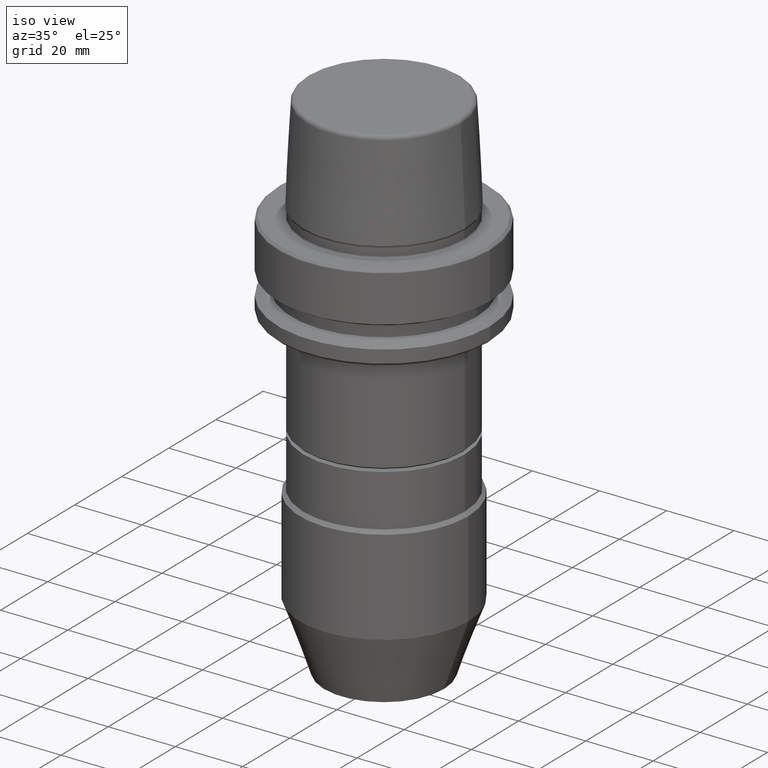
[diagram: clean part render]
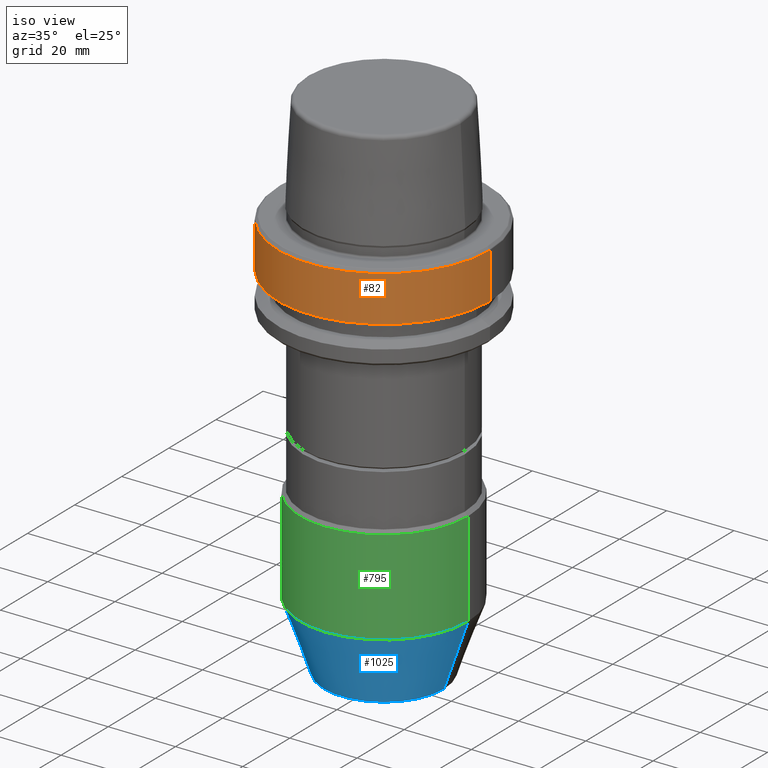
[diagram: same view with three faces highlighted in distinct colors, each labeled with its STEP entity id]
A machine part, iso view with three faces highlighted in distinct colors.
Their STEP definitions:

[orange] entity #82 — the highlighted cylindrical surface (partial cylindrical patch) has radius 31.5 mm, axis along (-0, -0, 1).
#82 = ADVANCED_FACE ( 'NONE', ( #346 ), #1364, .T. ) ;
#122 = CARTESIAN_POINT ( 'NONE',  ( 31.50000000000000700, 0.0000000000000000000, -0.9656854249492363700 ) ) ;
#203 = EDGE_CURVE ( 'NONE', #441, #1332, #228, .T. ) ;
#214 = CARTESIAN_POINT ( 'NONE',  ( 0.0000000000000000000, 0.0000000000000000000, 78.96908074195309300 ) ) ;
#228 = LINE ( 'NONE', #434, #931 ) ;
#296 = DIRECTION ( 'NONE',  ( 1.000000000000000000, 0.0000000000000000000, 0.0000000000000000000 ) ) ;
#299 = ORIENTED_EDGE ( 'NONE', *, *, #459, .F. ) ;
#307 = AXIS2_PLACEMENT_3D ( 'NONE', #619, #1429, #739 ) ;
#346 = FACE_OUTER_BOUND ( 'NONE', #1046, .T. ) ;
#373 = CARTESIAN_POINT ( 'NONE',  ( -31.50000000000000700, 3.857637417314163500E-015, -0.9656854249492363700 ) ) ;
#412 = VERTEX_POINT ( 'NONE', #1167 ) ;
#418 = EDGE_CURVE ( 'NONE', #412, #468, #1020, .T. ) ;
#427 = AXIS2_PLACEMENT_3D ( 'NONE', #214, #1365, #296 ) ;
#434 = CARTESIAN_POINT ( 'NONE',  ( -31.50000000000000000, 3.857637417314162700E-015, 78.96908074195309300 ) ) ;
#440 = CIRCLE ( 'NONE', #870, 31.50000000000000700 ) ;
#441 = VERTEX_POINT ( 'NONE', #694 ) ;
#459 = EDGE_CURVE ( 'NONE', #1332, #468, #440, .T. ) ;
#468 = VERTEX_POINT ( 'NONE', #122 ) ;
#555 = DIRECTION ( 'NONE',  ( -0.0000000000000000000, -0.0000000000000000000, 1.000000000000000000 ) ) ;
#575 = ORIENTED_EDGE ( 'NONE', *, *, #418, .T. ) ;
#619 = CARTESIAN_POINT ( 'NONE',  ( 0.0000000000000000000, 0.0000000000000000000, -14.62250092524070100 ) ) ;
#643 = DIRECTION ( 'NONE',  ( -0.0000000000000000000, -0.0000000000000000000, 1.000000000000000000 ) ) ;
#694 = CARTESIAN_POINT ( 'NONE',  ( -31.50000000000000000, 3.857637417314162700E-015, -14.62250092524070100 ) ) ;
#738 = ORIENTED_EDGE ( 'NONE', *, *, #203, .F. ) ;
#739 = DIRECTION ( 'NONE',  ( 1.000000000000000000, 0.0000000000000000000, 0.0000000000000000000 ) ) ;
#870 = AXIS2_PLACEMENT_3D ( 'NONE', #1451, #643, #1320 ) ;
#871 = VECTOR ( 'NONE', #983, 1000.000000000000000 ) ;
#883 = CIRCLE ( 'NONE', #307, 31.50000000000000000 ) ;
#931 = VECTOR ( 'NONE', #555, 1000.000000000000000 ) ;
#983 = DIRECTION ( 'NONE',  ( -0.0000000000000000000, -0.0000000000000000000, 1.000000000000000000 ) ) ;
#1020 = LINE ( 'NONE', #1454, #871 ) ;
#1046 = EDGE_LOOP ( 'NONE', ( #738, #1401, #575, #299 ) ) ;
#1167 = CARTESIAN_POINT ( 'NONE',  ( 31.50000000000000000, 0.0000000000000000000, -14.62250092524070100 ) ) ;
#1192 = EDGE_CURVE ( 'NONE', #441, #412, #883, .T. ) ;
#1320 = DIRECTION ( 'NONE',  ( 1.000000000000000000, 0.0000000000000000000, 0.0000000000000000000 ) ) ;
#1332 = VERTEX_POINT ( 'NONE', #373 ) ;
#1364 = CYLINDRICAL_SURFACE ( 'NONE', #427, 31.50000000000000000 ) ;
#1365 = DIRECTION ( 'NONE',  ( -0.0000000000000000000, -0.0000000000000000000, 1.000000000000000000 ) ) ;
#1401 = ORIENTED_EDGE ( 'NONE', *, *, #1192, .T. ) ;
#1429 = DIRECTION ( 'NONE',  ( -0.0000000000000000000, -0.0000000000000000000, 1.000000000000000000 ) ) ;
#1451 = CARTESIAN_POINT ( 'NONE',  ( 0.0000000000000000000, 0.0000000000000000000, -0.9656854249492363700 ) ) ;
#1454 = CARTESIAN_POINT ( 'NONE',  ( 31.50000000000000000, 0.0000000000000000000, 78.96908074195309300 ) ) ;

[blue] entity #1025 — the highlighted conical surface has half-angle 19.68 deg.
#1 = DIRECTION ( 'NONE',  ( -0.3367666026763854700, 4.124201420273638900E-017, 0.9415881558950312000 ) ) ;
#14 = DIRECTION ( 'NONE',  ( 1.000000000000000000, 0.0000000000000000000, 0.0000000000000000000 ) ) ;
#36 = AXIS2_PLACEMENT_3D ( 'NONE', #83, #1361, #328 ) ;
#59 = DIRECTION ( 'NONE',  ( 1.000000000000000000, 0.0000000000000000000, 0.0000000000000000000 ) ) ;
#83 = CARTESIAN_POINT ( 'NONE',  ( 0.0000000000000000000, 0.0000000000000000000, -122.5000000000000300 ) ) ;
#96 = EDGE_CURVE ( 'NONE', #1247, #424, #800, .T. ) ;
#102 = ORIENTED_EDGE ( 'NONE', *, *, #341, .F. ) ;
#110 = CARTESIAN_POINT ( 'NONE',  ( 25.00000000000000000, 0.0000000000000000000, -102.4389400111064200 ) ) ;
#124 = CARTESIAN_POINT ( 'NONE',  ( -17.82499999999998500, 2.622274958674269400E-015, -122.5000000000000300 ) ) ;
#127 = LINE ( 'NONE', #633, #1318 ) ;
#213 = VERTEX_POINT ( 'NONE', #110 ) ;
#243 = FACE_OUTER_BOUND ( 'NONE', #529, .T. ) ;
#310 = EDGE_CURVE ( 'NONE', #863, #213, #915, .T. ) ;
#328 = DIRECTION ( 'NONE',  ( 1.000000000000000000, 0.0000000000000000000, 0.0000000000000000000 ) ) ;
#341 = EDGE_CURVE ( 'NONE', #1247, #863, #649, .T. ) ;
#424 = VERTEX_POINT ( 'NONE', #475 ) ;
#475 = CARTESIAN_POINT ( 'NONE',  ( 17.82499999999998500, 0.0000000000000000000, -122.5000000000000300 ) ) ;
#477 = ORIENTED_EDGE ( 'NONE', *, *, #1424, .T. ) ;
#486 = AXIS2_PLACEMENT_3D ( 'NONE', #864, #1448, #59 ) ;
#529 = EDGE_LOOP ( 'NONE', ( #102, #1403, #477, #1171 ) ) ;
#612 = VECTOR ( 'NONE', #1, 1000.000000000000000 ) ;
#633 = CARTESIAN_POINT ( 'NONE',  ( 25.00000000000000000, 0.0000000000000000000, -102.4389400111064200 ) ) ;
#649 = LINE ( 'NONE', #813, #612 ) ;
#693 = CONICAL_SURFACE ( 'NONE', #486, 25.00000000000000000, 0.3434807967924810000 ) ;
#800 = CIRCLE ( 'NONE', #36, 17.82499999999998500 ) ;
#813 = CARTESIAN_POINT ( 'NONE',  ( -25.00000000000000000, 3.061616997868383000E-015, -102.4389400111064200 ) ) ;
#863 = VERTEX_POINT ( 'NONE', #1109 ) ;
#864 = CARTESIAN_POINT ( 'NONE',  ( 0.0000000000000000000, 0.0000000000000000000, -102.4389400111064200 ) ) ;
#915 = CIRCLE ( 'NONE', #979, 25.00000000000000000 ) ;
#948 = CARTESIAN_POINT ( 'NONE',  ( 0.0000000000000000000, 0.0000000000000000000, -102.4389400111064200 ) ) ;
#974 = DIRECTION ( 'NONE',  ( 0.3367666026763854700, 0.0000000000000000000, 0.9415881558950312000 ) ) ;
#979 = AXIS2_PLACEMENT_3D ( 'NONE', #948, #1165, #14 ) ;
#1025 = ADVANCED_FACE ( 'NONE', ( #243 ), #693, .T. ) ;
#1109 = CARTESIAN_POINT ( 'NONE',  ( -25.00000000000000000, 3.061616997868383000E-015, -102.4389400111064200 ) ) ;
#1165 = DIRECTION ( 'NONE',  ( -0.0000000000000000000, -0.0000000000000000000, 1.000000000000000000 ) ) ;
#1171 = ORIENTED_EDGE ( 'NONE', *, *, #310, .F. ) ;
#1247 = VERTEX_POINT ( 'NONE', #124 ) ;
#1318 = VECTOR ( 'NONE', #974, 1000.000000000000000 ) ;
#1361 = DIRECTION ( 'NONE',  ( -0.0000000000000000000, -0.0000000000000000000, 1.000000000000000000 ) ) ;
#1403 = ORIENTED_EDGE ( 'NONE', *, *, #96, .T. ) ;
#1424 = EDGE_CURVE ( 'NONE', #424, #213, #127, .T. ) ;
#1448 = DIRECTION ( 'NONE',  ( -0.0000000000000000000, -0.0000000000000000000, 1.000000000000000000 ) ) ;

[green] entity #795 — the highlighted cylindrical surface (partial cylindrical patch) has radius 25 mm, axis along (-0, -0, 1).
#14 = DIRECTION ( 'NONE',  ( 1.000000000000000000, 0.0000000000000000000, 0.0000000000000000000 ) ) ;
#63 = EDGE_CURVE ( 'NONE', #518, #1051, #1106, .T. ) ;
#73 = DIRECTION ( 'NONE',  ( -0.0000000000000000000, -0.0000000000000000000, 1.000000000000000000 ) ) ;
#90 = LINE ( 'NONE', #875, #1014 ) ;
#100 = CYLINDRICAL_SURFACE ( 'NONE', #775, 25.00000000000000000 ) ;
#110 = CARTESIAN_POINT ( 'NONE',  ( 25.00000000000000000, 0.0000000000000000000, -102.4389400111064200 ) ) ;
#149 = ORIENTED_EDGE ( 'NONE', *, *, #63, .F. ) ;
#213 = VERTEX_POINT ( 'NONE', #110 ) ;
#310 = EDGE_CURVE ( 'NONE', #863, #213, #915, .T. ) ;
#453 = ORIENTED_EDGE ( 'NONE', *, *, #310, .T. ) ;
#476 = FACE_OUTER_BOUND ( 'NONE', #656, .T. ) ;
#495 = VECTOR ( 'NONE', #1119, 1000.000000000000000 ) ;
#510 = ORIENTED_EDGE ( 'NONE', *, *, #1095, .T. ) ;
#518 = VERTEX_POINT ( 'NONE', #1269 ) ;
#520 = DIRECTION ( 'NONE',  ( 1.000000000000000000, 0.0000000000000000000, 0.0000000000000000000 ) ) ;
#551 = DIRECTION ( 'NONE',  ( -0.0000000000000000000, -0.0000000000000000000, 1.000000000000000000 ) ) ;
#645 = CARTESIAN_POINT ( 'NONE',  ( 0.0000000000000000000, 0.0000000000000000000, 31.31059451800105700 ) ) ;
#651 = EDGE_CURVE ( 'NONE', #863, #518, #1470, .T. ) ;
#656 = EDGE_LOOP ( 'NONE', ( #910, #453, #510, #149 ) ) ;
#667 = DIRECTION ( 'NONE',  ( 1.000000000000000000, 0.0000000000000000000, 0.0000000000000000000 ) ) ;
#775 = AXIS2_PLACEMENT_3D ( 'NONE', #645, #1455, #520 ) ;
#795 = ADVANCED_FACE ( 'NONE', ( #476 ), #100, .T. ) ;
#863 = VERTEX_POINT ( 'NONE', #1109 ) ;
#875 = CARTESIAN_POINT ( 'NONE',  ( 25.00000000000000000, 0.0000000000000000000, 31.31059451800105700 ) ) ;
#910 = ORIENTED_EDGE ( 'NONE', *, *, #651, .F. ) ;
#915 = CIRCLE ( 'NONE', #979, 25.00000000000000000 ) ;
#948 = CARTESIAN_POINT ( 'NONE',  ( 0.0000000000000000000, 0.0000000000000000000, -102.4389400111064200 ) ) ;
#979 = AXIS2_PLACEMENT_3D ( 'NONE', #948, #1165, #14 ) ;
#1014 = VECTOR ( 'NONE', #73, 1000.000000000000000 ) ;
#1051 = VERTEX_POINT ( 'NONE', #1211 ) ;
#1095 = EDGE_CURVE ( 'NONE', #213, #1051, #90, .T. ) ;
#1106 = CIRCLE ( 'NONE', #1245, 25.00000000000000000 ) ;
#1109 = CARTESIAN_POINT ( 'NONE',  ( -25.00000000000000000, 3.061616997868383000E-015, -102.4389400111064200 ) ) ;
#1119 = DIRECTION ( 'NONE',  ( -0.0000000000000000000, -0.0000000000000000000, 1.000000000000000000 ) ) ;
#1165 = DIRECTION ( 'NONE',  ( -0.0000000000000000000, -0.0000000000000000000, 1.000000000000000000 ) ) ;
#1211 = CARTESIAN_POINT ( 'NONE',  ( 25.00000000000000000, 0.0000000000000000000, -74.20000000000000300 ) ) ;
#1245 = AXIS2_PLACEMENT_3D ( 'NONE', #1262, #551, #667 ) ;
#1262 = CARTESIAN_POINT ( 'NONE',  ( 0.0000000000000000000, 0.0000000000000000000, -74.20000000000000300 ) ) ;
#1269 = CARTESIAN_POINT ( 'NONE',  ( -25.00000000000000000, 3.061616997868383000E-015, -74.20000000000000300 ) ) ;
#1455 = DIRECTION ( 'NONE',  ( -0.0000000000000000000, -0.0000000000000000000, 1.000000000000000000 ) ) ;
#1470 = LINE ( 'NONE', #1473, #495 ) ;
#1473 = CARTESIAN_POINT ( 'NONE',  ( -25.00000000000000000, 3.061616997868383000E-015, 31.31059451800105700 ) ) ;